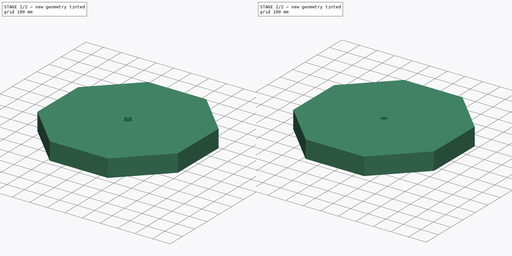
[diagram: build sequence overview — one tinted view per stage of 2, left to right]
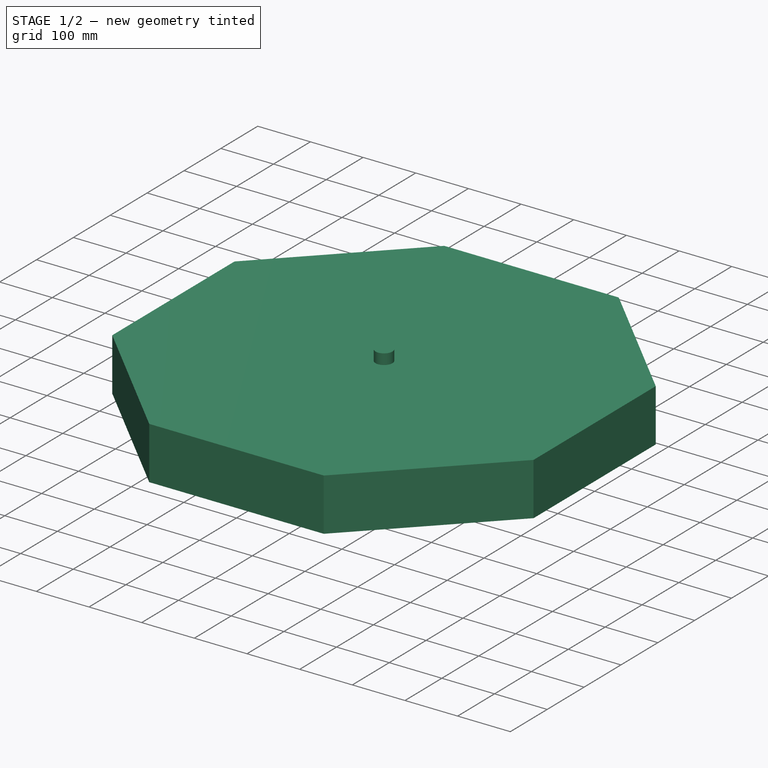
[diagram: stage 1 of 2 — iso view after this stage's code; geometry added in this stage tinted green]
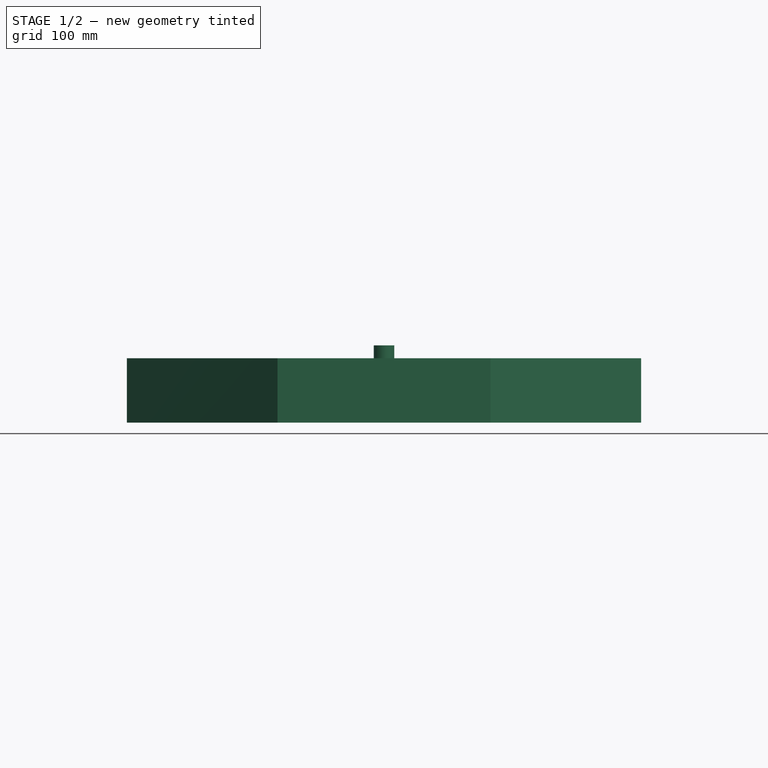
[diagram: stage 1 of 2 — front view after this stage's code; geometry added in this stage tinted green]
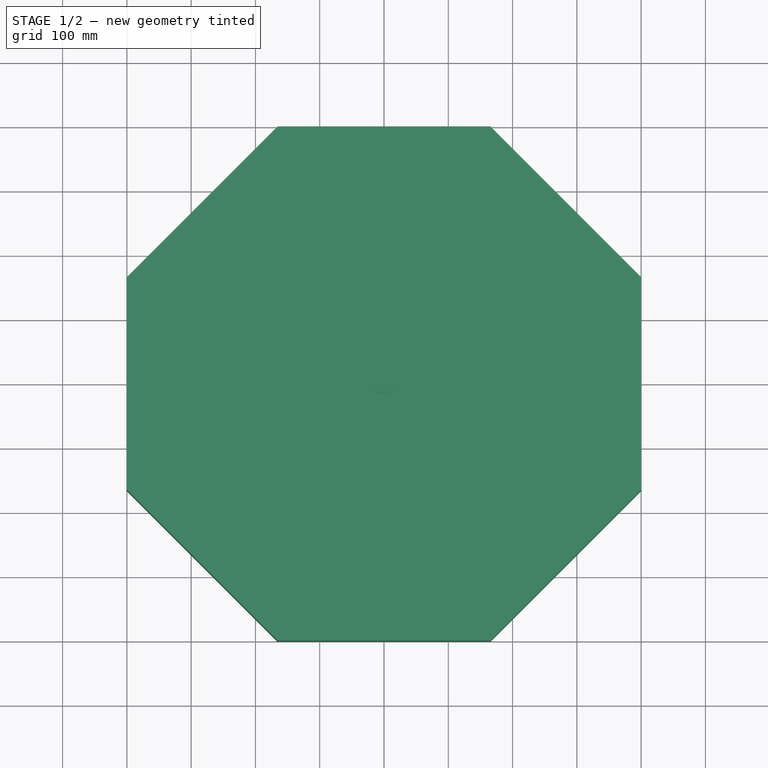
[diagram: stage 1 of 2 — top view after this stage's code; geometry added in this stage tinted green]
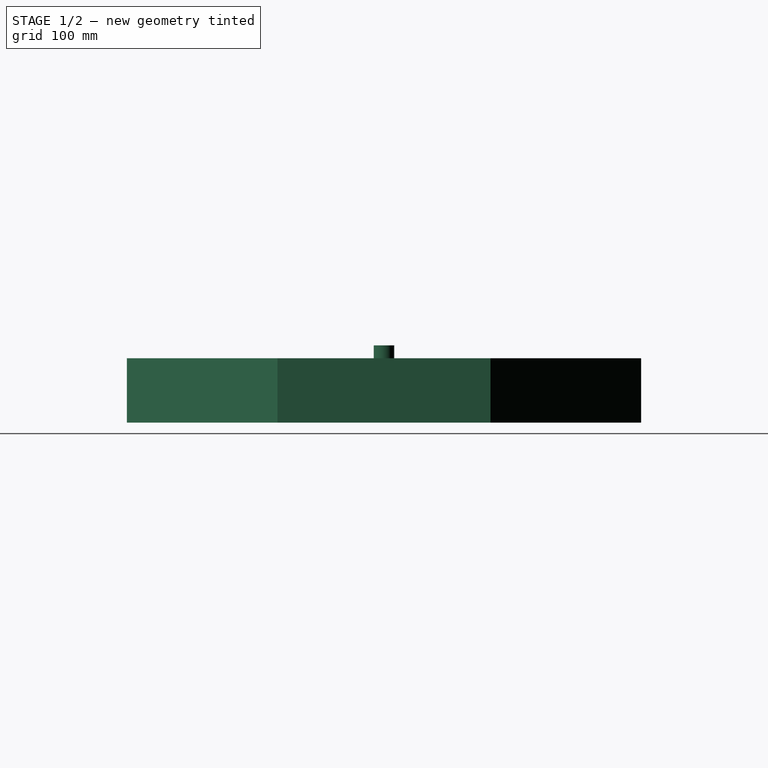
[diagram: stage 1 of 2 — right view after this stage's code; geometry added in this stage tinted green]
FCSTD DOCUMENT  (FreeCAD 0.15R4550 (Git))
Label: table
License: All rights reserved
LicenseURL: http://en.wikipedia.org/wiki/All_rights_reserved
objects: Sketcher::SketchObject×1, PartDesign::Pad×1, Part::Cylinder×1, Part::Cut×1
note: 5 computed .brp shape members not serialized (recipe doc carries the construction recipe); baked Part::Feature solids carry a one-line shape summary decoded from their .brp

FEATURE [Sketcher::SketchObject] Sketch
  sketch-geometry (9):
    g0: LineSegment StartX=400 StartY=-165.685 StartZ=0 EndX=400 EndY=165.685 EndZ=0
    g1: LineSegment StartX=400 StartY=165.685 StartZ=0 EndX=165.685 EndY=400 EndZ=0
    g2: LineSegment StartX=165.685 StartY=400 StartZ=0 EndX=-165.685 EndY=400 EndZ=0
    g3: LineSegment StartX=-165.685 StartY=400 StartZ=0 EndX=-400 EndY=165.685 EndZ=0
    g4: LineSegment StartX=-400 StartY=165.685 StartZ=0 EndX=-400 EndY=-165.685 EndZ=0
    g5: LineSegment StartX=-400 StartY=-165.685 StartZ=0 EndX=-165.685 EndY=-400 EndZ=0
    g6: LineSegment StartX=-165.685 StartY=-400 StartZ=0 EndX=165.685 EndY=-400 EndZ=0
    g7: LineSegment StartX=165.685 StartY=-400 StartZ=0 EndX=400 EndY=-165.685 EndZ=0
    g8: Circle [constr] CenterX=0 CenterY=0 CenterZ=0 NormalX=0 NormalY=0 NormalZ=1 Radius=432.957
  constraints (20):
    c: Coincident(g0,g1)
    c: Coincident(g1,g2)
    c: Coincident(g2,g3)
    c: Coincident(g3,g4)
    c: Coincident(g4,g5)
    c: Coincident(g5,g6)
    c: Coincident(g6,g7)
    c: Coincident(g7,g0)
    c: Equal(g0, g1-g7) x7
    c: PointOnObject(g0,g8)
    c: PointOnObject(g1,g8)
    c: PointOnObject(g2,g8)
    c: PointOnObject(g3,g8)
    c: PointOnObject(g4,g8)
    c: PointOnObject(g5,g8)
    c: PointOnObject(g6,g8)
    c: PointOnObject(g7,g8)
    c: Coincident(g8,g-1)
    c: Parallel(g-1,g2)
    c: DistanceX(g3,g0) = 800
FEATURE [PartDesign::Pad] Pad
  Length = 100
  Length2 = 100
  Sketch = -> Sketch
  Type = 0
FEATURE [Part::Cylinder] Cylinder
  Angle = 360
  Height = 120
  Radius = 16
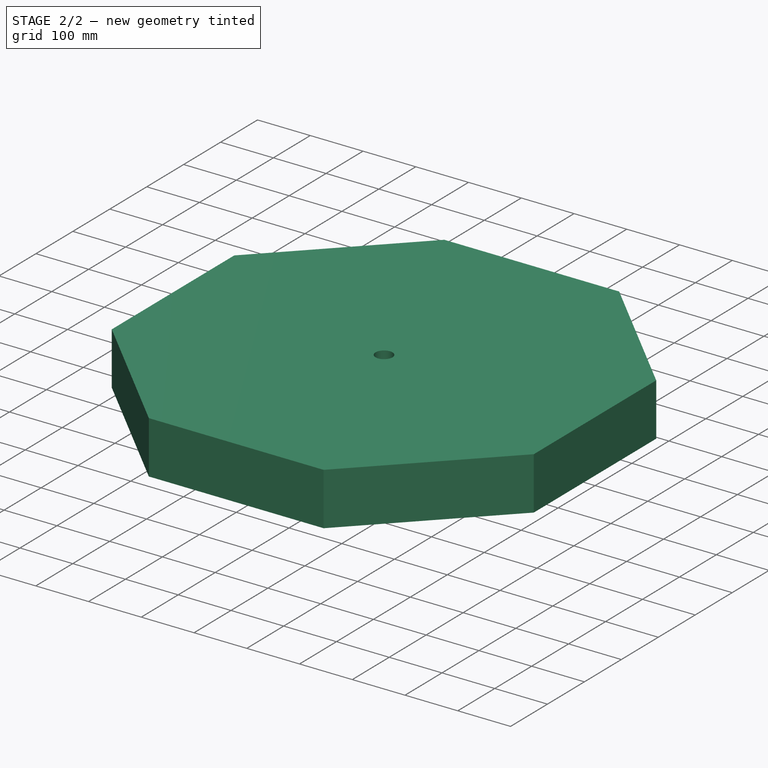
[diagram: stage 2 of 2 — iso view after this stage's code; geometry added in this stage tinted green]
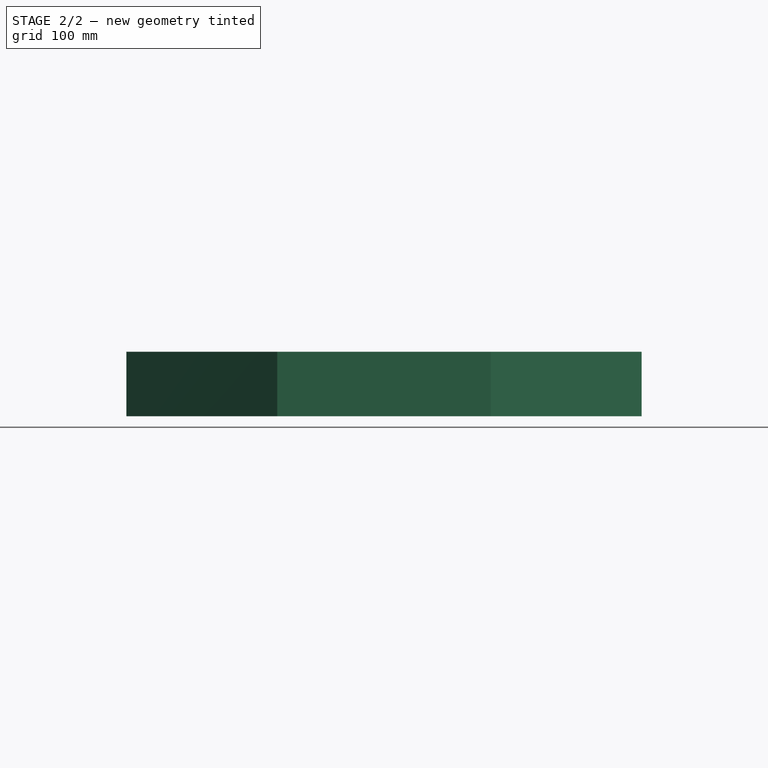
[diagram: stage 2 of 2 — front view after this stage's code; geometry added in this stage tinted green]
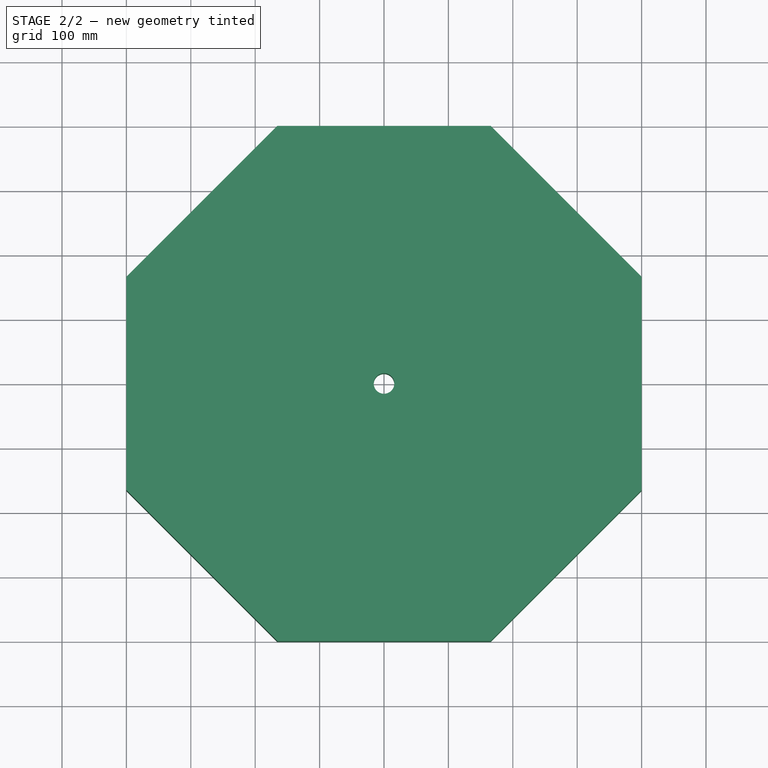
[diagram: stage 2 of 2 — top view after this stage's code; geometry added in this stage tinted green]
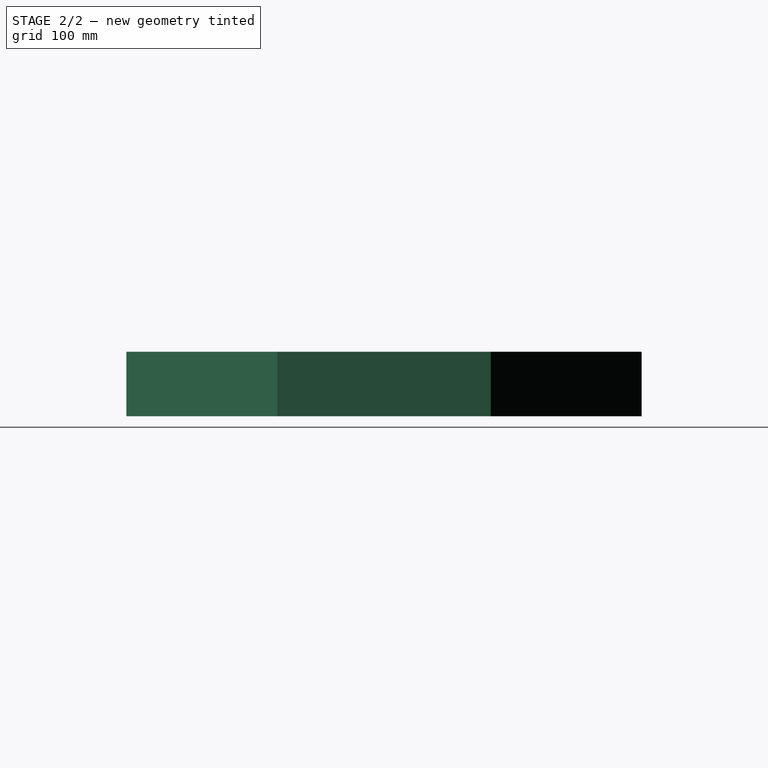
[diagram: stage 2 of 2 — right view after this stage's code; geometry added in this stage tinted green]
FEATURE [Part::Cut] Cut
  Base = -> Pad
  Tool = -> Cylinder
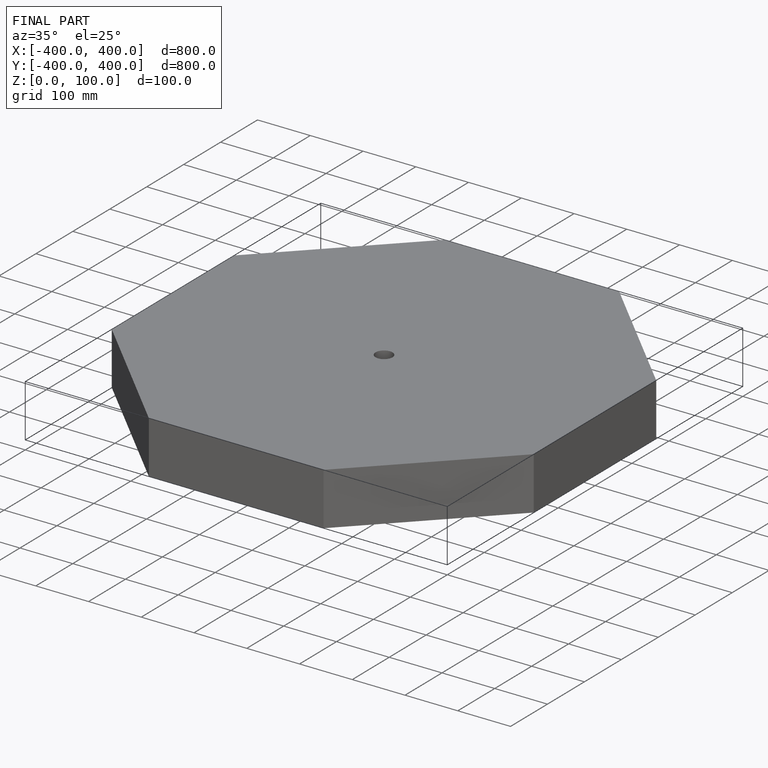
[diagram: finished part — iso view with bounding-box wireframe]
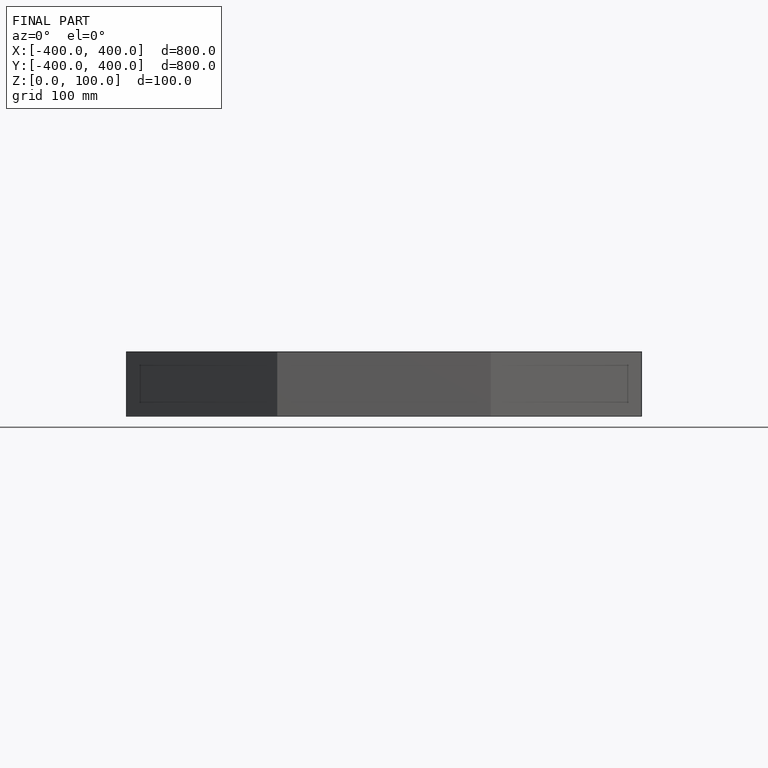
[diagram: finished part — front view with bounding-box wireframe]
